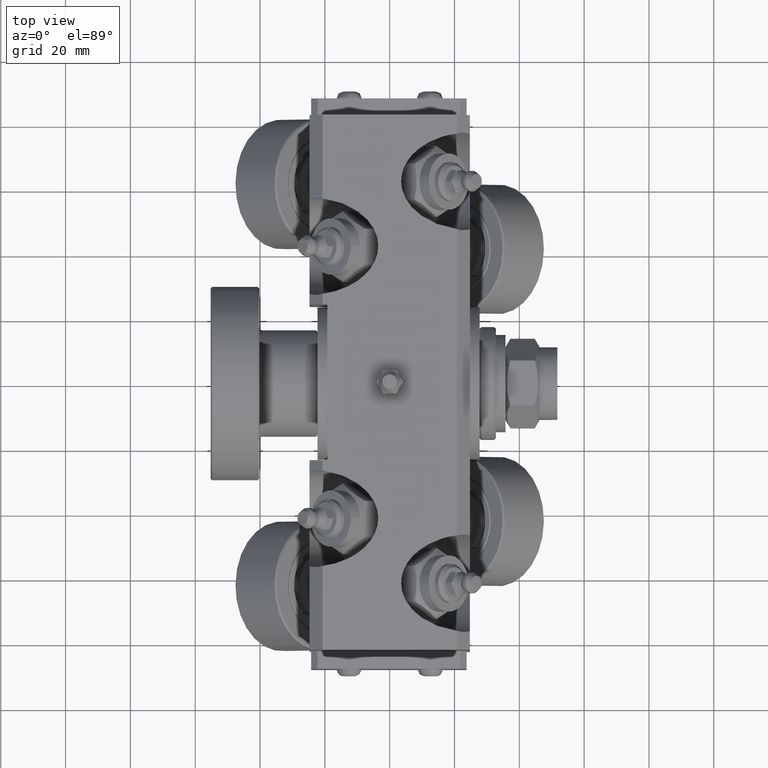
[diagram: clean part render]
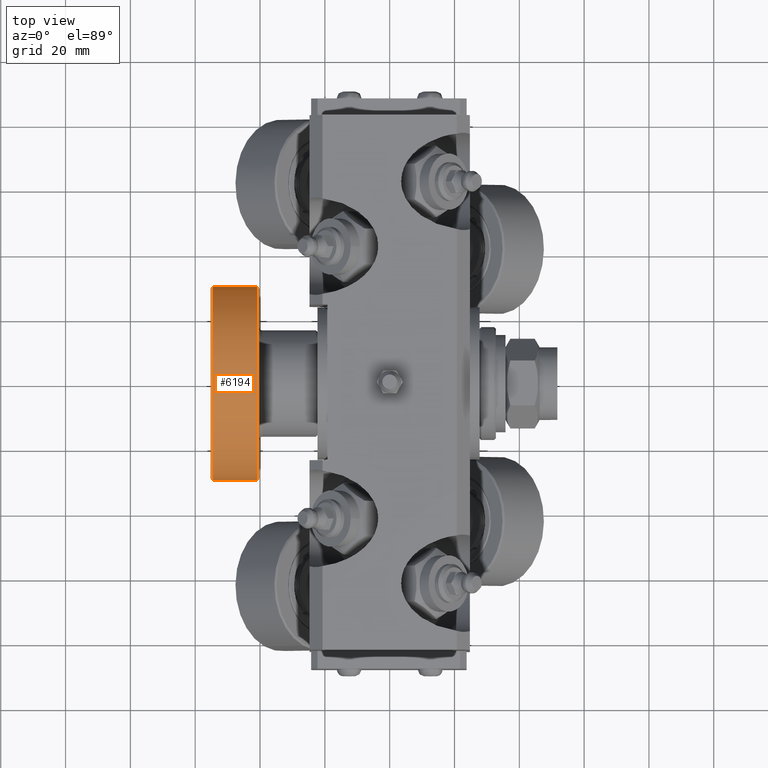
[diagram: same view with one face highlighted and labeled with its STEP entity id]
A machine part, top view. The second image highlights one B-rep face of the part: STEP entity #6194.
In plain terms, the highlighted cylindrical surface (bore or boss wall) has radius 30 mm, axis along (-1, 0, 0).
Its self-contained STEP definition (entity closure, byte-faithful):
#872=FACE_OUTER_BOUND('',#1282,.T.);
#1282=EDGE_LOOP('',(#5293,#5294,#5295,#5296,#5297,#5298));
#1679=CIRCLE('',#7254,30.);
#1680=CIRCLE('',#7255,30.);
#1681=CIRCLE('',#7257,30.);
#1682=CIRCLE('',#7258,30.);
#2073=LINE('',#12540,#2423);
#2423=VECTOR('',#8730,30.);
#2997=VERTEX_POINT('',#12530);
#2998=VERTEX_POINT('',#12531);
#2999=VERTEX_POINT('',#12536);
#3000=VERTEX_POINT('',#12537);
#3793=EDGE_CURVE('',#2997,#2998,#1679,.T.);
#3794=EDGE_CURVE('',#2998,#2997,#1680,.T.);
#3796=EDGE_CURVE('',#2999,#3000,#1681,.T.);
#3797=EDGE_CURVE('',#3000,#2999,#1682,.T.);
#3798=EDGE_CURVE('',#3000,#2998,#2073,.T.);
#5293=ORIENTED_EDGE('',*,*,#3796,.F.);
#5294=ORIENTED_EDGE('',*,*,#3797,.F.);
#5295=ORIENTED_EDGE('',*,*,#3798,.T.);
#5296=ORIENTED_EDGE('',*,*,#3793,.F.);
#5297=ORIENTED_EDGE('',*,*,#3794,.F.);
#5298=ORIENTED_EDGE('',*,*,#3798,.F.);
#5952=CYLINDRICAL_SURFACE('',#7256,30.);
#6194=ADVANCED_FACE('',(#872),#5952,.T.);
#7254=AXIS2_PLACEMENT_3D('',#12532,#8719,#8720);
#7255=AXIS2_PLACEMENT_3D('',#12533,#8721,#8722);
#7256=AXIS2_PLACEMENT_3D('',#12535,#8724,#8725);
#7257=AXIS2_PLACEMENT_3D('',#12538,#8726,#8727);
#7258=AXIS2_PLACEMENT_3D('',#12539,#8728,#8729);
#8719=DIRECTION('center_axis',(1.,0.,-1.46957615897682E-15));
#8720=DIRECTION('ref_axis',(-1.36325196093122E-15,0.,-1.));
#8721=DIRECTION('center_axis',(1.,0.,-1.46957615897682E-15));
#8722=DIRECTION('ref_axis',(-1.36325196093122E-15,0.,-1.));
#8724=DIRECTION('center_axis',(-1.,0.,1.46957615897682E-15));
#8725=DIRECTION('ref_axis',(1.36325196093122E-15,0.,1.));
#8726=DIRECTION('center_axis',(-1.,0.,1.46957615897682E-15));
#8727=DIRECTION('ref_axis',(-1.36325196093122E-15,0.,-1.));
#8728=DIRECTION('center_axis',(-1.,0.,1.46957615897682E-15));
#8729=DIRECTION('ref_axis',(-1.36325196093122E-15,0.,-1.));
#8730=DIRECTION('',(1.,0.,-1.46957615897682E-15));
#12530=CARTESIAN_POINT('',(-39.,-3.67394039744206E-15,30.0000000000001));
#12531=CARTESIAN_POINT('',(-39.0000000000001,-3.67394039744206E-15,-29.9999999999999));
#12532=CARTESIAN_POINT('Origin',(-39.,0.,6.71019671785965E-14));
#12533=CARTESIAN_POINT('Origin',(-39.,0.,6.71019671785965E-14));
#12535=CARTESIAN_POINT('Origin',(-46.,0.,7.73890002914343E-14));
#12536=CARTESIAN_POINT('',(-52.9999999999999,3.67394039744206E-15,30.0000000000001));
#12537=CARTESIAN_POINT('',(-53.,-3.67394039744206E-15,-29.9999999999999));
#12538=CARTESIAN_POINT('Origin',(-53.,0.,8.7676033404272E-14));
#12539=CARTESIAN_POINT('Origin',(-53.,0.,8.7676033404272E-14));
#12540=CARTESIAN_POINT('',(-46.,-3.67394039744206E-15,-29.9999999999999));